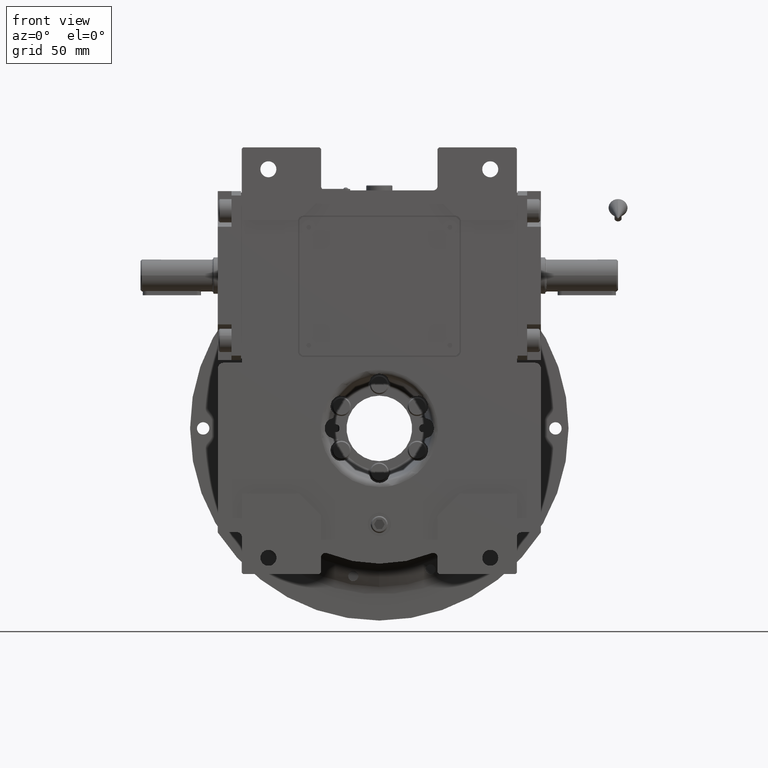
[diagram: clean part render]
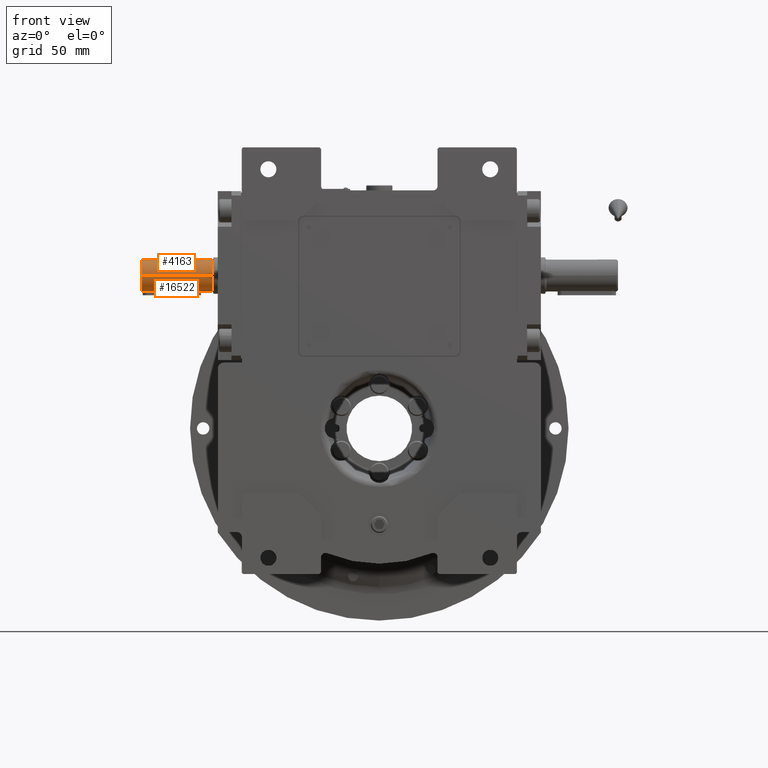
[diagram: same view with one multi-face feature highlighted, each face labeled with its STEP entity id]
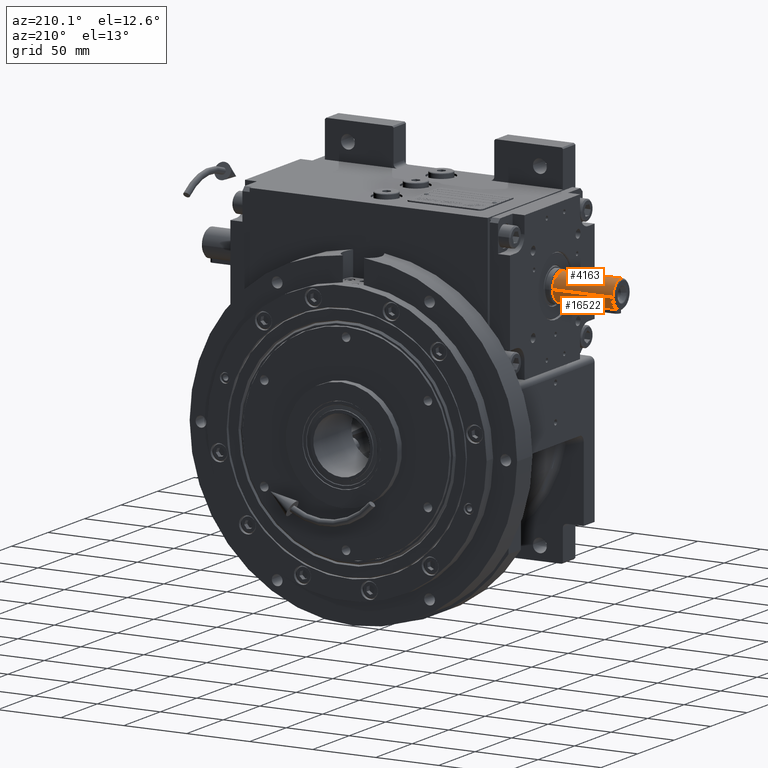
[diagram: same view with one multi-face feature highlighted, each face labeled with its STEP entity id]
A machine part, front view. The highlighted faces form ONE feature: a constant-radius fillet chain: 2 tangent blend faces with common blend radius 11 mm. The faces share edges in the B-rep.
A second angle (auxiliary view) of the same feature is appended — it is thin or edge-on in the first view.
Their STEP definitions:
[1] entity #16522 (Cylinder):
#83 = CARTESIAN_POINT ( 'NONE',  ( 0.7660300046609603841, 168.5976912605676716, 10.97354824663438499 ) ) ;
#421 = CARTESIAN_POINT ( 'NONE',  ( -2.854075951817792944, 170.5744775876573556, 10.62355100343995318 ) ) ;
#775 = CARTESIAN_POINT ( 'NONE',  ( -2.211193619821330891, 169.4722792484953686, 10.77562492455039234 ) ) ;
#1134 = CARTESIAN_POINT ( 'NONE',  ( -2.498350456136479547, 169.8363144599197767, 10.71355034653173988 ) ) ;
#1474 = CARTESIAN_POINT ( 'NONE',  ( 2.308734591574664208, 169.5660757615260366, 10.75673222596686607 ) ) ;
#1760 = CARTESIAN_POINT ( 'NONE',  ( 1.433641063859902864, 208.1365963449599974, 10.90581971387781657 ) ) ;
#2442 = CARTESIAN_POINT ( 'NONE',  ( 2.831211821317803690, 206.4941158000847850, 10.62945302409086601 ) ) ;
#2489 = CARTESIAN_POINT ( 'NONE',  ( 2.764613483579583697, 170.3351272444221536, 10.64672004548999062 ) ) ;
#2773 = CARTESIAN_POINT ( 'NONE',  ( 2.920736592802817722, 206.1920781631039858, 10.60630209123706713 ) ) ;
#2826 = CARTESIAN_POINT ( 'NONE',  ( 2.999999999999917843, 171.5000000000000284, 10.58300524425835576 ) ) ;
#2829 = DIRECTION ( 'NONE',  ( -4.683861624749757595E-31, 1.000000000000000000, 9.367723249499515189E-31 ) ) ;
#3018 = EDGE_LOOP ( 'NONE', ( #28774, #45633, #31394, #68014 ) ) ;
#3121 = CARTESIAN_POINT ( 'NONE',  ( 2.979326682313685470, 205.9028774423900074, 10.59077584461320853 ) ) ;
#4712 = CARTESIAN_POINT ( 'NONE',  ( -2.601559668085969612, 206.9971612710415911, 10.68881831214253531 ) ) ;
#4931 = CARTESIAN_POINT ( 'NONE',  ( 1.429970974490036628, 168.8554804092703137, 10.90719154593365481 ) ) ;
#5047 = CARTESIAN_POINT ( 'NONE',  ( -1.678559104051027928, 207.9883758854033715, 10.87070390130170416 ) ) ;
#5272 = CARTESIAN_POINT ( 'NONE',  ( -1.512920505492298950, 168.9075789781374795, 10.89501527342688192 ) ) ;
#5393 = CARTESIAN_POINT ( 'NONE',  ( -3.000000000000090150, 205.9062042931898588, 10.58646656928889485 ) ) ;
#5946 = CARTESIAN_POINT ( 'NONE',  ( -2.293773039446053374, 169.5654594730334281, 10.75861599459855533 ) ) ;
#6301 = CARTESIAN_POINT ( 'NONE',  ( -2.772312094891833389, 170.3535701749892723, 10.64471543622043725 ) ) ;
#6661 = CARTESIAN_POINT ( 'NONE',  ( 2.748365590168961425, 170.2970937011939156, 10.65097208548513485 ) ) ;
#6946 = CARTESIAN_POINT ( 'NONE',  ( -0.1869660823867076438, 208.5000000071818533, 11.00000260151293929 ) ) ;
#7283 = CARTESIAN_POINT ( 'NONE',  ( 1.942138565853932075, 207.8004848156913908, 10.82877006207169579 ) ) ;
#7639 = CARTESIAN_POINT ( 'NONE',  ( 1.234039166872511695, 208.2345037874122511, 10.93043900165573312 ) ) ;
#7649 = CARTESIAN_POINT ( 'NONE',  ( -2.879180034990585835, 208.9998216057742013, 10.71352568579750120 ) ) ;
#7674 = LINE ( 'NONE', #34216, #43551 ) ;
#7696 = CARTESIAN_POINT ( 'NONE',  ( 2.601559605864334213, 170.0028386211674274, 10.68881833244917523 ) ) ;
#7698 = EDGE_CURVE ( 'NONE', #50924, #21062, #38910, .T. ) ;
#7974 = CARTESIAN_POINT ( 'NONE',  ( 1.761503382575561272, 207.9362690075281250, 10.85852761685147527 ) ) ;
#8172 = CARTESIAN_POINT ( 'NONE',  ( -3.000000000000082601, 205.5000000000000284, 10.58300524425835576 ) ) ;
#8313 = CARTESIAN_POINT ( 'NONE',  ( 2.498350418695169939, 207.1636855961122023, 10.71355035712630865 ) ) ;
#8322 = CARTESIAN_POINT ( 'NONE',  ( -10.99982159998399744, 208.9998216057712455, 1.439873280091993557 ) ) ;
#8364 = LINE ( 'NONE', #56245, #32579 ) ;
#8651 = CARTESIAN_POINT ( 'NONE',  ( -2.698907439505223937, 206.8105446094843103, 10.66393854603710878 ) ) ;
#8993 = CARTESIAN_POINT ( 'NONE',  ( -1.942007582189047898, 207.7873945690253947, 10.82708017654643307 ) ) ;
#10103 = CARTESIAN_POINT ( 'NONE',  ( -3.000000000000089706, 171.2969416959749651, 10.58473538646198620 ) ) ;
#10175 = CARTESIAN_POINT ( 'NONE',  ( 2.999999999999917843, 171.5000000000000284, 10.58300524425835576 ) ) ;
#10442 = CARTESIAN_POINT ( 'NONE',  ( -0.3739326876442026770, 168.5000000170198859, 10.99999480633905691 ) ) ;
#10556 = CARTESIAN_POINT ( 'NONE',  ( -0.6690471670458882913, 208.4261023684203735, 10.97984746646839049 ) ) ;
#10785 = CARTESIAN_POINT ( 'NONE',  ( 1.067681326174926504, 168.6962141872421057, 10.94807461813118188 ) ) ;
#10906 = CARTESIAN_POINT ( 'NONE',  ( -0.9835473798974690984, 208.3349984927263847, 10.95606726062417735 ) ) ;
#11122 = CARTESIAN_POINT ( 'NONE',  ( -2.232376894938095102, 169.4956412869229041, 10.77130172608876180 ) ) ;
#11468 = CARTESIAN_POINT ( 'NONE',  ( -1.761503377498407241, 169.0637309891567384, 10.85852761823462664 ) ) ;
#12172 = CARTESIAN_POINT ( 'NONE',  ( 1.942007626740597903, 169.2126054684655969, 10.82708016768247639 ) ) ;
#12470 = CARTESIAN_POINT ( 'NONE',  ( 1.439873276542142477, 208.9998216057751108, 10.99982160044466362 ) ) ;
#12510 = CARTESIAN_POINT ( 'NONE',  ( 2.715325017861212498, 170.2239481373033811, 10.65964339383735293 ) ) ;
#12789 = CARTESIAN_POINT ( 'NONE',  ( 1.286031883976452184, 208.2106413463211538, 10.92437284050215673 ) ) ;
#12838 = CARTESIAN_POINT ( 'NONE',  ( 2.076400037127472231, 169.3344725131065900, 10.80229493266225838 ) ) ;
#13126 = CARTESIAN_POINT ( 'NONE',  ( 2.211193640733463806, 207.5277207285452334, 10.77562492030889274 ) ) ;
#13177 = CARTESIAN_POINT ( 'NONE',  ( 2.031554838444880939, 169.2923470949750708, 10.81075490227139113 ) ) ;
#14151 = CARTESIAN_POINT ( 'NONE',  ( -1.147497220845989041, 208.2718709842086753, 10.93995103843515970 ) ) ;
#14217 = EDGE_CURVE ( 'NONE', #68090, #33563, #35811, .T. ) ;
#14824 = DIRECTION ( 'NONE',  ( -1.000000000000000000, 0.000000000000000000, 8.599181972551215489E-15 ) ) ;
#15406 = CARTESIAN_POINT ( 'NONE',  ( -2.076399965673095593, 207.6655275553029867, 10.80229494691891112 ) ) ;
#15732 = CARTESIAN_POINT ( 'NONE',  ( -1.139533900953844991, 208.2751584090861741, 10.94078571015552903 ) ) ;
#15953 = CARTESIAN_POINT ( 'NONE',  ( -1.942138540634611443, 169.1995151677060107, 10.82877006683077248 ) ) ;
#16070 = CARTESIAN_POINT ( 'NONE',  ( -0.7660298785186925308, 208.4023087729604526, 10.97354825509163945 ) ) ;
#16307 = CARTESIAN_POINT ( 'NONE',  ( 1.279005678273035906, 168.7827925354089871, 10.92607962578970771 ) ) ;
#16522 = ADVANCED_FACE ( 'NONE', ( #23869, #33881 ), #44901, .T. ) ;
#16654 = CARTESIAN_POINT ( 'NONE',  ( 0.9835474860896697979, 168.6650015443500763, 10.95606725368451961 ) ) ;
#17674 = CARTESIAN_POINT ( 'NONE',  ( 6.759904280527821996, 208.9998216057764751, 8.796192608861034046 ) ) ;
#17715 = CARTESIAN_POINT ( 'NONE',  ( 2.767734022707133423, 170.3425611766374459, 10.64590627712765070 ) ) ;
#17998 = CARTESIAN_POINT ( 'NONE',  ( 2.779840276394444754, 206.6280618357305912, 10.64275983503434375 ) ) ;
#18682 = CARTESIAN_POINT ( 'NONE',  ( 2.331831469196709250, 207.3883554059316054, 10.75053732846293997 ) ) ;
#18693 = CARTESIAN_POINT ( 'NONE',  ( -10.71352568672911332, 208.9998216057715865, 2.879180031534197770 ) ) ;
#18713 = DIRECTION ( 'NONE',  ( -4.683861624749757595E-31, 1.000000000000000000, 9.367723249499515189E-31 ) ) ;
#18730 = CARTESIAN_POINT ( 'NONE',  ( 2.097778072076519340, 169.3551396584123268, 10.79818608746044895 ) ) ;
#19011 = CARTESIAN_POINT ( 'NONE',  ( 1.157452513228695246, 208.2677329124778680, 10.93890087851657533 ) ) ;
#20586 = CARTESIAN_POINT ( 'NONE',  ( -2.737723622719329786, 206.7268634571211123, 10.65376796009249105 ) ) ;
#21062 = VERTEX_POINT ( 'NONE', #58630 ) ;
#21135 = CARTESIAN_POINT ( 'NONE',  ( -2.331831480777071697, 169.6116446080049514, 10.75053732546468765 ) ) ;
#21191 = EDGE_CURVE ( 'NONE', #34126, #44311, #65244, .T. ) ;
#21470 = CARTESIAN_POINT ( 'NONE',  ( 0.6690472934797331295, 168.5738976602024479, 10.97984745790708772 ) ) ;
#21596 = CARTESIAN_POINT ( 'NONE',  ( -1.897425668484660877, 207.8244195157290051, 10.83486051743896006 ) ) ;
#22188 = CARTESIAN_POINT ( 'NONE',  ( -2.831211770130459104, 170.5058840566491938, 10.62945303912002615 ) ) ;
#22546 = EDGE_CURVE ( 'NONE', #24035, #57239, #23123, .T. ) ;
#23123 = CIRCLE ( 'NONE', #60542, 11.00000000000000000 ) ;
#23165 = CARTESIAN_POINT ( 'NONE',  ( 2.653232687552493640, 206.9137802569442215, 10.67643290049545612 ) ) ;
#23492 = CARTESIAN_POINT ( 'NONE',  ( 2.772312108320795332, 206.6464297925444100, 10.64471543524964936 ) ) ;
#23818 = CARTESIAN_POINT ( 'NONE',  ( 2.896620549922605647, 206.2867366109770160, 10.61255509526254670 ) ) ;
#23828 = CARTESIAN_POINT ( 'NONE',  ( -6.759904286206507074, 208.9998216057731213, 8.796192604501108292 ) ) ;
#23869 = FACE_OUTER_BOUND ( 'NONE', #3018, .T. ) ;
#24035 = VERTEX_POINT ( 'NONE', #50689 ) ;
#24163 = CARTESIAN_POINT ( 'NONE',  ( 2.775339633358483660, 206.6390897185939366, 10.64392871889903347 ) ) ;
#24499 = CARTESIAN_POINT ( 'NONE',  ( -2.446669781241373354, 207.2470619033199739, 10.72593578221498944 ) ) ;
#26080 = CARTESIAN_POINT ( 'NONE',  ( -2.748365588727732067, 206.7029063017605495, 10.65097208023377107 ) ) ;
#26300 = CARTESIAN_POINT ( 'NONE',  ( -1.322026423828889019, 168.8066771672218351, 10.91998920481140267 ) ) ;
#26433 = CARTESIAN_POINT ( 'NONE',  ( -1.127575243858448317, 208.2800388084309873, 10.94202596088717705 ) ) ;
#26644 = CARTESIAN_POINT ( 'NONE',  ( -2.167336588683653087, 169.4254685392180875, 10.78446056407013032 ) ) ;
#26833 = CARTESIAN_POINT ( 'NONE',  ( 11.00000000000000000, 161.0000000000000284, 0.000000000000000000 ) ) ;
#26989 = CARTESIAN_POINT ( 'NONE',  ( -2.775339617218300248, 170.3609102421057457, 10.64392872073288210 ) ) ;
#27977 = CARTESIAN_POINT ( 'NONE',  ( -0.3790211413637508686, 208.4824720792036601, 10.99496479331891408 ) ) ;
#28128 = EDGE_LOOP ( 'NONE', ( #51631, #44340, #49103, #40830 ) ) ;
#28317 = CARTESIAN_POINT ( 'NONE',  ( 2.232376909501748052, 207.5043586967248928, 10.77130172318535095 ) ) ;
#28528 = EDGE_CURVE ( 'NONE', #57239, #33563, #36829, .T. ) ;
#28774 = ORIENTED_EDGE ( 'NONE', *, *, #22546, .T. ) ;
#29056 = CARTESIAN_POINT ( 'NONE',  ( 2.446669717013508993, 169.7529380078595693, 10.72593579875624847 ) ) ;
#29347 = CARTESIAN_POINT ( 'NONE',  ( 2.293773036830384360, 207.4345405295221667, 10.75861599544649572 ) ) ;
#30021 = CARTESIAN_POINT ( 'NONE',  ( -2.009136411221251972, 207.7280625489486283, 10.81489994510766373 ) ) ;
#31155 = CARTESIAN_POINT ( 'NONE',  ( -2.722192573628714474, 170.2328222567296905, 10.65774367792662503 ) ) ;
#31229 = DIRECTION ( 'NONE',  ( -4.683861624749757595E-31, 1.000000000000000000, 9.367723249499515189E-31 ) ) ;
#31272 = CARTESIAN_POINT ( 'NONE',  ( -2.031554776398942774, 207.7076529620196652, 10.81075491461141169 ) ) ;
#31394 = ORIENTED_EDGE ( 'NONE', *, *, #14217, .F. ) ;
#31492 = CARTESIAN_POINT ( 'NONE',  ( 0.3790212450437195901, 168.5175279328497879, 10.99496478591228232 ) ) ;
#31611 = CARTESIAN_POINT ( 'NONE',  ( -1.067681234393999423, 208.3037858477822510, 10.94807462401718468 ) ) ;
#32176 = CARTESIAN_POINT ( 'NONE',  ( -1.159479155630800173, 168.7331195871554996, 10.93868412015507374 ) ) ;
#32514 = CARTESIAN_POINT ( 'NONE',  ( -1.433641062218319329, 168.8634036539154408, 10.90581971317204513 ) ) ;
#32579 = VECTOR ( 'NONE', #2829, 1000.000000000000000 ) ;
#33164 = CARTESIAN_POINT ( 'NONE',  ( 0.3739325104841381697, 208.4999999856364070, 10.99999479697607896 ) ) ;
#33547 = CARTESIAN_POINT ( 'NONE',  ( 2.759870980702111343, 170.3238923559703153, 10.64795842688996252 ) ) ;
#33563 = VERTEX_POINT ( 'NONE', #34796 ) ;
#33842 = CARTESIAN_POINT ( 'NONE',  ( 2.143602779759595567, 207.5990400649873777, 10.78918130667784858 ) ) ;
#33881 = FACE_BOUND ( 'NONE', #28128, .T. ) ;
#34126 = VERTEX_POINT ( 'NONE', #42481 ) ;
#34216 = CARTESIAN_POINT ( 'NONE',  ( -3.000000000000082601, 171.5000000000000284, 10.58300524425888334 ) ) ;
#34451 = EDGE_CURVE ( 'NONE', #50924, #44311, #7674, .T. ) ;
#34529 = CARTESIAN_POINT ( 'NONE',  ( 10.71352568486465451, 208.9998216057781804, 2.879180038446532919 ) ) ;
#34796 = CARTESIAN_POINT ( 'NONE',  ( 11.00000000000000000, 208.9999777057610117, 0.000000000000000000 ) ) ;
#34862 = CARTESIAN_POINT ( 'NONE',  ( -2.644564917222766987, 206.9187285013183271, 10.67795868685712257 ) ) ;
#35213 = CARTESIAN_POINT ( 'NONE',  ( -1.429970973129999878, 208.1445195910417851, 10.90719154465723761 ) ) ;
#35811 = B_SPLINE_CURVE_WITH_KNOTS ( 'NONE', 3,
 ( #65208, #8322, #18693, #39359, #65541, #23828, #39022, #7649, #54175, #12470, #60710, #60011, #17674, #38697, #44862, #34529, #55185, #65889 ),
 .UNSPECIFIED., .F., .F.,
 ( 4, 2, 2, 2, 2, 2, 2, 2, 4 ),
 ( 0.000000000000000000, 0.1250000000000000278, 0.2500000000000000555, 0.3750000000000000000, 0.5000000000000000000, 0.6250000000000000000, 0.7500000000000000000, 0.8750000000000001110, 1.000000000000000000 ),
 .UNSPECIFIED. ) ;
#36648 = CARTESIAN_POINT ( 'NONE',  ( -2.920736532385526996, 170.8079215815316445, 10.60630211995176708 ) ) ;
#36684 = AXIS2_PLACEMENT_3D ( 'NONE', #51053, #67582, #55900 ) ;
#36774 = CARTESIAN_POINT ( 'NONE',  ( -2.308734620827896933, 207.4339242235999734, 10.75673222121823258 ) ) ;
#36829 = LINE ( 'NONE', #26833, #58205 ) ;
#36993 = CARTESIAN_POINT ( 'NONE',  ( 0.1869661390004578594, 168.4999999914900854, 11.00000259683188197 ) ) ;
#37117 = CARTESIAN_POINT ( 'NONE',  ( -2.759870969661196494, 206.6761076698489319, 10.64795842476979892 ) ) ;
#37121 = CARTESIAN_POINT ( 'NONE',  ( 11.00000000000000000, 161.0000000000000284, 4.629005512235551123E-09 ) ) ;
#37352 = CARTESIAN_POINT ( 'NONE',  ( -2.979326648543525025, 171.0971223052072503, 10.59077587316058278 ) ) ;
#37686 = CARTESIAN_POINT ( 'NONE',  ( -1.234039142372927111, 168.7654962015103877, 10.93043900252528289 ) ) ;
#38697 = CARTESIAN_POINT ( 'NONE',  ( 8.796192602316750708, 208.9998216057772140, 6.759904289042387049 ) ) ;
#38732 = CARTESIAN_POINT ( 'NONE',  ( 2.768513025352917545, 170.3444174603243937, 10.64570308239758489 ) ) ;
#38910 = B_SPLINE_CURVE_WITH_KNOTS ( 'NONE', 3,
 ( #57646, #10103, #37352, #36648, #52845, #421, #22188, #53518, #58340, #46980, #26989, #6301, #31155, #57990, #1134, #48354, #21135, #5946, #11122, #775, #26644, #53176, #15953, #11468, #5272, #32514, #26300, #42160, #37686, #63187, #43203, #47998, #32176, #42866, #63884, #10442, #36993, #31492, #21470, #83, #52154, #16654, #10785, #64223, #47657, #42501, #63531, #16307, #4931, #68009, #58681, #41825, #12172, #49366, #13177, #12838, #18730, #1474, #29056, #7696, #49709, #55222, #12510, #44908, #6661, #33547, #2489, #17715, #38732, #60396, #44559, #2826 ),
 .UNSPECIFIED., .F., .F.,
 ( 4, 2, 2, 1, 1, 1, 2, 2, 2, 2, 2, 2, 2, 2, 2, 2, 1, 1, 2, 2, 2, 2, 2, 1, 1, 1, 2, 2, 2, 2, 2, 2, 2, 2, 2, 2, 1, 1, 2, 2, 4 ),
 ( 0.000000000000000000, 0.06249999999987768118, 0.09374999999981652177, 0.1093749999997901956, 0.1171874999997770395, 0.1210937499997704614, 0.1230468749997672140, 0.1249999999997639943, 0.1874999999998474276, 0.2187499999998890887, 0.2343749999999070743, 0.2421874999999134581, 0.2499999999999198419, 0.3124999999999855671, 0.3437500000000184852, 0.3593750000000326406, 0.3671875000000373590, 0.3710937500000397460, 0.3730468750000432432, 0.3750000000000467404, 0.5000000000001896261, 0.5625000000002611245, 0.5937500000002968736, 0.6093750000003147482, 0.6171875000003236300, 0.6210937500003280709, 0.6230468750003287370, 0.6250000000003292921, 0.6875000000003406164, 0.7187500000003484990, 0.7343750000003547163, 0.7421875000003602674, 0.7500000000003657075, 0.8125000000004189982, 0.8437500000004419798, 0.8593750000004488632, 0.8671875000004576339, 0.8710937500004620748, 0.8730468750004581890, 0.8750000000004541922, 1.000000000000000000 ),
 .UNSPECIFIED. ) ;
#39011 = CARTESIAN_POINT ( 'NONE',  ( 2.167336623629454007, 207.5745314241212611, 10.78446055697714812 ) ) ;
#39022 = CARTESIAN_POINT ( 'NONE',  ( -5.539718940497374788, 208.9998216057735192, 9.611494387161664932 ) ) ;
#39347 = CARTESIAN_POINT ( 'NONE',  ( 2.801868858470860868, 206.5726274570405963, 10.63704590494139879 ) ) ;
#39359 = CARTESIAN_POINT ( 'NONE',  ( -9.611494388950395873, 208.9998216057721834, 5.539718937396577836 ) ) ;
#39686 = CARTESIAN_POINT ( 'NONE',  ( 1.179703648391459136, 208.2583393865936046, 10.93651199430383159 ) ) ;
#40023 = CARTESIAN_POINT ( 'NONE',  ( 2.999999999999911626, 205.7030581364574573, 10.58473536746739363 ) ) ;
#40381 = CARTESIAN_POINT ( 'NONE',  ( -8.881784197022640315E-16, 161.0000000000000284, 5.134781488891348999E-13 ) ) ;
#40830 = ORIENTED_EDGE ( 'NONE', *, *, #7698, .F. ) ;
#41825 = CARTESIAN_POINT ( 'NONE',  ( 1.897425705253059425, 169.1755805140680309, 10.83486051008340390 ) ) ;
#41942 = CARTESIAN_POINT ( 'NONE',  ( -1.109627185540415839, 208.2872959487408764, 10.94387157015932921 ) ) ;
#42160 = CARTESIAN_POINT ( 'NONE',  ( -1.286031867911205495, 168.7893586459718449, 10.92437284069479553 ) ) ;
#42401 = CARTESIAN_POINT ( 'NONE',  ( -10.99995538991750088, 208.9999554115215119, -1.645557995422208819E-07 ) ) ;
#42481 = CARTESIAN_POINT ( 'NONE',  ( 2.999999999999917843, 205.5000000000000284, 10.58300524425835576 ) ) ;
#42501 = CARTESIAN_POINT ( 'NONE',  ( 1.139533978096343825, 168.7248416225932601, 10.94078570534264472 ) ) ;
#42628 = CARTESIAN_POINT ( 'NONE',  ( -2.767734004599112563, 206.6574388666506934, 10.64590627739815609 ) ) ;
#42866 = CARTESIAN_POINT ( 'NONE',  ( -1.157452472523905485, 168.7322670704961922, 10.93890088078130063 ) ) ;
#43203 = CARTESIAN_POINT ( 'NONE',  ( -1.179703613028082243, 168.7416605982708973, 10.93651199609693592 ) ) ;
#43551 = VECTOR ( 'NONE', #18713, 1000.000000000000000 ) ;
#44311 = VERTEX_POINT ( 'NONE', #8172 ) ;
#44340 = ORIENTED_EDGE ( 'NONE', *, *, #21191, .F. ) ;
#44559 = CARTESIAN_POINT ( 'NONE',  ( 2.999999999999909406, 171.0937962497110050, 10.58646650751575891 ) ) ;
#44850 = CARTESIAN_POINT ( 'NONE',  ( 1.322026435441510106, 208.1933228270213760, 10.91998920494051539 ) ) ;
#44862 = CARTESIAN_POINT ( 'NONE',  ( 9.611494385370720650, 208.9998216057774130, 5.539718943596772860 ) ) ;
#44901 = CYLINDRICAL_SURFACE ( 'NONE', #36684, 11.00000000000000000 ) ;
#44908 = CARTESIAN_POINT ( 'NONE',  ( 2.737723616411809946, 170.2731365286352627, 10.65376796770141254 ) ) ;
#45192 = CARTESIAN_POINT ( 'NONE',  ( 1.512920505027642415, 208.0924210222171951, 10.89501527399899494 ) ) ;
#45524 = CARTESIAN_POINT ( 'NONE',  ( -2.768513007301319107, 206.6555825828828858, 10.64570308271039778 ) ) ;
#45633 = ORIENTED_EDGE ( 'NONE', *, *, #28528, .T. ) ;
#46541 = EDGE_CURVE ( 'NONE', #24035, #68090, #8364, .T. ) ;
#46756 = CARTESIAN_POINT ( 'NONE',  ( -1.279005655815804054, 208.2172074779478521, 10.92607962582780523 ) ) ;
#46980 = CARTESIAN_POINT ( 'NONE',  ( -2.779840256848185032, 170.3719381161269553, 10.64275983800449765 ) ) ;
#47449 = CARTESIAN_POINT ( 'NONE',  ( -3.000000000000082601, 205.5000000000000284, 10.58300524425835576 ) ) ;
#47657 = CARTESIAN_POINT ( 'NONE',  ( 1.127575323570559673, 168.7199612239032547, 10.94202595588556726 ) ) ;
#47998 = CARTESIAN_POINT ( 'NONE',  ( -1.167542316113192591, 168.7365123355785386, 10.93782163668175222 ) ) ;
#48354 = CARTESIAN_POINT ( 'NONE',  ( -2.438082279217019810, 169.7481291815186353, 10.72743677364188386 ) ) ;
#49103 = ORIENTED_EDGE ( 'NONE', *, *, #60796, .F. ) ;
#49319 = CARTESIAN_POINT ( 'NONE',  ( 2.722192558527213979, 206.7671777832651969, 10.65774368688581575 ) ) ;
#49366 = CARTESIAN_POINT ( 'NONE',  ( 2.009136468733570435, 169.2719375028273134, 10.81489993367493341 ) ) ;
#49665 = CARTESIAN_POINT ( 'NONE',  ( 2.999999999999917843, 205.5000000000000284, 10.58300524425835576 ) ) ;
#49709 = CARTESIAN_POINT ( 'NONE',  ( 2.644564864764731738, 170.0812713992473277, 10.67795870609829478 ) ) ;
#50689 = CARTESIAN_POINT ( 'NONE',  ( -11.00000000000000000, 161.0000000000000284, -4.628492034086661988E-09 ) ) ;
#50924 = VERTEX_POINT ( 'NONE', #51611 ) ;
#51053 = CARTESIAN_POINT ( 'NONE',  ( -2.253530627927504672E-27, 160.0000000000000284, 5.273559366969493567E-13 ) ) ;
#51611 = CARTESIAN_POINT ( 'NONE',  ( -3.000000000000082601, 171.5000000000000284, 10.58300524425888334 ) ) ;
#51631 = ORIENTED_EDGE ( 'NONE', *, *, #34451, .T. ) ;
#51657 = DIRECTION ( 'NONE',  ( -4.683861624749757595E-31, 1.000000000000000000, 9.367723249499515189E-31 ) ) ;
#51938 = CARTESIAN_POINT ( 'NONE',  ( -2.097777976926303634, 207.6448604349319567, 10.79818610642119481 ) ) ;
#52154 = CARTESIAN_POINT ( 'NONE',  ( 0.9111085654770301190, 168.6412536526178485, 10.96220927681888035 ) ) ;
#52267 = CARTESIAN_POINT ( 'NONE',  ( -0.9111084508035326435, 208.3587463839891711, 10.96220928438663655 ) ) ;
#52624 = CARTESIAN_POINT ( 'NONE',  ( -2.764613468312786093, 206.6648727917981319, 10.64672004479335143 ) ) ;
#52845 = CARTESIAN_POINT ( 'NONE',  ( -2.896620484574018661, 170.7132631530699598, 10.61255512167270965 ) ) ;
#52966 = CARTESIAN_POINT ( 'NONE',  ( -2.916726216699202290, 206.2985075118487828, 10.60716823416496801 ) ) ;
#53176 = CARTESIAN_POINT ( 'NONE',  ( -2.143602725503926276, 169.4009598796852458, 10.78918131756628718 ) ) ;
#53518 = CARTESIAN_POINT ( 'NONE',  ( -2.801868823610917492, 170.4273724525709781, 10.63704591330724369 ) ) ;
#54175 = CARTESIAN_POINT ( 'NONE',  ( -1.439873283641022184, 208.9998216057745140, 10.99982159951607663 ) ) ;
#55185 = CARTESIAN_POINT ( 'NONE',  ( 10.99982159904755363, 208.9998216057784930, 1.439873287189862072 ) ) ;
#55222 = CARTESIAN_POINT ( 'NONE',  ( 2.698907409592844253, 170.1894553284684264, 10.66393856019919006 ) ) ;
#55511 = CARTESIAN_POINT ( 'NONE',  ( 2.854076010124382723, 206.4255222335273743, 10.62355098402704101 ) ) ;
#55900 = DIRECTION ( 'NONE',  ( -1.000000000000000000, 0.000000000000000000, 8.437694987151192863E-15 ) ) ;
#56188 = CARTESIAN_POINT ( 'NONE',  ( -1.765016607846097152, 207.9284392897766622, 10.85718209991657268 ) ) ;
#56245 = CARTESIAN_POINT ( 'NONE',  ( -11.00000000000000000, 161.0000000000000284, 5.273559366969493567E-13 ) ) ;
#57239 = VERTEX_POINT ( 'NONE', #37121 ) ;
#57377 = LINE ( 'NONE', #10175, #58690 ) ;
#57646 = CARTESIAN_POINT ( 'NONE',  ( -3.000000000000082601, 171.5000000000000284, 10.58300524425888334 ) ) ;
#57761 = CARTESIAN_POINT ( 'NONE',  ( -2.715325038922851597, 206.7760518172297566, 10.65964338194845418 ) ) ;
#57990 = CARTESIAN_POINT ( 'NONE',  ( -2.653232724297391876, 170.0862198111043142, 10.67643288751651731 ) ) ;
#58205 = VECTOR ( 'NONE', #51657, 1000.000000000000000 ) ;
#58340 = CARTESIAN_POINT ( 'NONE',  ( -2.786545469109226403, 170.3885086293563518, 10.64101914187430076 ) ) ;
#58630 = CARTESIAN_POINT ( 'NONE',  ( 2.999999999999917843, 171.5000000000000284, 10.58300524425835576 ) ) ;
#58681 = CARTESIAN_POINT ( 'NONE',  ( 1.765016624717439031, 169.0715607216540377, 10.85718209647388832 ) ) ;
#58690 = VECTOR ( 'NONE', #31229, 1000.000000000000000 ) ;
#59668 = CARTESIAN_POINT ( 'NONE',  ( 2.786545493596075840, 206.6114913094266967, 10.64101913722736015 ) ) ;
#60001 = CARTESIAN_POINT ( 'NONE',  ( 1.159479195744513413, 208.2668803960328887, 10.93868411794432838 ) ) ;
#60011 = CARTESIAN_POINT ( 'NONE',  ( 5.539718934293233588, 208.9998216057761340, 9.611494390734479865 ) ) ;
#60396 = CARTESIAN_POINT ( 'NONE',  ( 2.916726425407015100, 170.7014930090882672, 10.60716817197006634 ) ) ;
#60542 = AXIS2_PLACEMENT_3D ( 'NONE', #40381, #62744, #14824 ) ;
#60710 = CARTESIAN_POINT ( 'NONE',  ( 2.879180028076210540, 208.9998216057754519, 10.71352568765430924 ) ) ;
#60796 = EDGE_CURVE ( 'NONE', #21062, #34126, #57377, .T. ) ;
#61033 = CARTESIAN_POINT ( 'NONE',  ( 0.7694195325722867906, 208.4290248706461171, 10.97983835631161575 ) ) ;
#62744 = DIRECTION ( 'NONE',  ( -4.683861624749757595E-31, 1.000000000000000000, 9.367723249499515189E-31 ) ) ;
#63187 = CARTESIAN_POINT ( 'NONE',  ( -1.208542002004611593, 168.7540940151674818, 10.93334476044187298 ) ) ;
#63531 = CARTESIAN_POINT ( 'NONE',  ( 1.147497296970652281, 168.7281290473081583, 10.93995103367359079 ) ) ;
#63884 = CARTESIAN_POINT ( 'NONE',  ( -0.7694194016925743895, 168.5709750817599399, 10.97983836647873801 ) ) ;
#64223 = CARTESIAN_POINT ( 'NONE',  ( 1.109627269032129382, 168.7127040845178669, 10.94387156488037505 ) ) ;
#65208 = CARTESIAN_POINT ( 'NONE',  ( -10.99995538991750088, 208.9999554115215119, -1.645557995422208819E-07 ) ) ;
#65244 = B_SPLINE_CURVE_WITH_KNOTS ( 'NONE', 3,
 ( #49665, #40023, #3121, #2773, #23818, #55511, #2442, #39347, #59668, #17998, #24163, #23492, #49319, #23165, #8313, #66214, #18682, #29347, #28317, #13126, #39011, #33842, #7283, #7974, #45192, #1760, #44850, #12789, #7639, #65875, #39686, #65531, #60001, #19011, #61033, #33164, #6946, #27977, #10556, #16070, #52267, #10906, #31611, #41942, #26433, #15732, #14151, #46756, #35213, #5047, #56188, #21596, #8993, #30021, #31272, #15406, #51938, #36774, #24499, #4712, #34862, #8651, #57761, #20586, #26080, #37117, #52624, #42628, #45524, #52966, #5393, #47449 ),
 .UNSPECIFIED., .F., .F.,
 ( 4, 2, 2, 1, 1, 1, 2, 2, 2, 2, 2, 2, 2, 2, 2, 2, 1, 1, 2, 2, 2, 2, 2, 1, 1, 1, 2, 2, 2, 2, 2, 2, 2, 2, 2, 2, 1, 1, 2, 2, 4 ),
 ( 0.000000000000000000, 0.06249999999979220788, 0.09374999999968401665, 0.1093749999996299072, 0.1171874999996071059, 0.1210937499995956429, 0.1230468749995899391, 0.1249999999995842354, 0.1874999999995243805, 0.2187499999994981237, 0.2343749999994879096, 0.2421874999994853561, 0.2499999999994828026, 0.3124999999994815258, 0.3437499999994808597, 0.3593749999994805266, 0.3671874999994826916, 0.3710937499994837463, 0.3730468749994819144, 0.3749999999994800826, 0.4999999999993992583, 0.5624999999993587352, 0.5937499999993394173, 0.6093749999993297584, 0.6171874999993263167, 0.6210937499993260946, 0.6230468749993258726, 0.6249999999993257616, 0.6874999999994300115, 0.7187499999994820810, 0.7343749999995080602, 0.7421874999995210498, 0.7499999999995340394, 0.8124999999996337374, 0.8437499999996798117, 0.8593749999997027933, 0.8671874999997142286, 0.8710937499997198907, 0.8730468749997227773, 0.8749999999997255529, 1.000000000000000000 ),
 .UNSPECIFIED. ) ;
#65531 = CARTESIAN_POINT ( 'NONE',  ( 1.167542354304421881, 208.2634876482845812, 10.93782163464049262 ) ) ;
#65541 = CARTESIAN_POINT ( 'NONE',  ( -8.796192606682938120, 208.9998216057724960, 6.759904283368517675 ) ) ;
#65875 = CARTESIAN_POINT ( 'NONE',  ( 1.208542031159786090, 208.2459059719581660, 10.93334475918529947 ) ) ;
#65889 = CARTESIAN_POINT ( 'NONE',  ( 11.00000000000000000, 208.9999777057610117, 0.000000000000000000 ) ) ;
#66214 = CARTESIAN_POINT ( 'NONE',  ( 2.438082247072530517, 207.2518708616503034, 10.72743678203931772 ) ) ;
#67582 = DIRECTION ( 'NONE',  ( 4.683861624749757595E-31, -1.000000000000000000, -9.367723249499515189E-31 ) ) ;
#68009 = CARTESIAN_POINT ( 'NONE',  ( 1.678559112312646873, 169.0116241200572347, 10.87070389965113471 ) ) ;
#68014 = ORIENTED_EDGE ( 'NONE', *, *, #46541, .F. ) ;
#68090 = VERTEX_POINT ( 'NONE', #42401 ) ;
[2] entity #4163 (Cylinder):
#577 = CARTESIAN_POINT ( 'NONE',  ( 9.325425065658253638E-14, 208.9999108029441004, -10.99991079990968501 ) ) ;
#2813 = EDGE_CURVE ( 'NONE', #57239, #24035, #25411, .T. ) ;
#2829 = DIRECTION ( 'NONE',  ( -4.683861624749757595E-31, 1.000000000000000000, 9.367723249499515189E-31 ) ) ;
#4163 = ADVANCED_FACE ( 'NONE', ( #28743 ), #30099, .T. ) ;
#5204 = B_SPLINE_CURVE_WITH_KNOTS ( 'NONE', 3,
 ( #48157, #63695, #27495, #43356, #53337, #11281, #16808, #59192, #16462, #577 ),
 .UNSPECIFIED., .F., .F.,
 ( 4, 2, 2, 2, 4 ),
 ( 0.000000000000000000, 0.1250000010347016577, 0.2500000020694033154, 0.3750000031041049731, 0.5000000041388067418 ),
 .UNSPECIFIED. ) ;
#8364 = LINE ( 'NONE', #56245, #32579 ) ;
#10164 = CARTESIAN_POINT ( 'NONE',  ( -8.796192498803419468, 208.9998216060274672, -6.759904418209425003 ) ) ;
#11281 = CARTESIAN_POINT ( 'NONE',  ( 6.759904282614707327, 208.9998216058694140, -8.796192607111565920 ) ) ;
#14585 = AXIS2_PLACEMENT_3D ( 'NONE', #45603, #49736, #40103 ) ;
#15489 = EDGE_CURVE ( 'NONE', #33563, #28383, #5204, .T. ) ;
#15669 = CARTESIAN_POINT ( 'NONE',  ( -10.99995538991750088, 208.9999554115215119, -1.645557995422208819E-07 ) ) ;
#16462 = CARTESIAN_POINT ( 'NONE',  ( 1.439873279901228154, 208.9998216059220795, -10.99982159983306218 ) ) ;
#16808 = CARTESIAN_POINT ( 'NONE',  ( 5.539718936738798227, 208.9998216058825733, -9.611494389175364361 ) ) ;
#18191 = ORIENTED_EDGE ( 'NONE', *, *, #15489, .F. ) ;
#18414 = EDGE_LOOP ( 'NONE', ( #18191, #61713, #23885, #47150, #34139 ) ) ;
#21190 = DIRECTION ( 'NONE',  ( -4.683861624749757595E-31, 1.000000000000000000, 9.367723249499515189E-31 ) ) ;
#23885 = ORIENTED_EDGE ( 'NONE', *, *, #2813, .T. ) ;
#24035 = VERTEX_POINT ( 'NONE', #50689 ) ;
#25411 = CIRCLE ( 'NONE', #40837, 11.00000000000000000 ) ;
#26833 = CARTESIAN_POINT ( 'NONE',  ( 11.00000000000000000, 161.0000000000000284, 0.000000000000000000 ) ) ;
#27495 = CARTESIAN_POINT ( 'NONE',  ( 10.71352568530425486, 208.9998216058035041, -2.879180036626189931 ) ) ;
#28383 = VERTEX_POINT ( 'NONE', #65163 ) ;
#28528 = EDGE_CURVE ( 'NONE', #57239, #33563, #36829, .T. ) ;
#28743 = FACE_OUTER_BOUND ( 'NONE', #18414, .T. ) ;
#30099 = CYLINDRICAL_SURFACE ( 'NONE', #14585, 11.00000000000000000 ) ;
#30545 = CARTESIAN_POINT ( 'NONE',  ( -9.611494287303019135, 208.9998216060407401, -5.539719106973703511 ) ) ;
#31210 = DIRECTION ( 'NONE',  ( 1.000000000000000000, 0.000000000000000000, -8.476717292636477185E-15 ) ) ;
#31216 = CARTESIAN_POINT ( 'NONE',  ( -10.71352561977209916, 208.9998216060670018, -2.879180267530163650 ) ) ;
#31900 = CARTESIAN_POINT ( 'NONE',  ( -5.539718852179358777, 208.9998216059879041, -9.611494434219167715 ) ) ;
#32579 = VECTOR ( 'NONE', #2829, 1000.000000000000000 ) ;
#33563 = VERTEX_POINT ( 'NONE', #34796 ) ;
#34139 = ORIENTED_EDGE ( 'NONE', *, *, #42338, .F. ) ;
#34796 = CARTESIAN_POINT ( 'NONE',  ( 11.00000000000000000, 208.9999777057610117, 0.000000000000000000 ) ) ;
#36704 = CARTESIAN_POINT ( 'NONE',  ( -8.881784197023788107E-16, 161.0000000000000284, 5.273559366969493567E-13 ) ) ;
#36829 = LINE ( 'NONE', #26833, #58205 ) ;
#37121 = CARTESIAN_POINT ( 'NONE',  ( 11.00000000000000000, 161.0000000000000284, 4.629005512235551123E-09 ) ) ;
#40103 = DIRECTION ( 'NONE',  ( -1.000000000000000000, 0.000000000000000000, 8.437694987151192863E-15 ) ) ;
#40837 = AXIS2_PLACEMENT_3D ( 'NONE', #36704, #21190, #31210 ) ;
#41884 = CARTESIAN_POINT ( 'NONE',  ( -6.759904185019615319, 208.9998216060011487, -8.796192678043546209 ) ) ;
#42338 = EDGE_CURVE ( 'NONE', #28383, #68090, #51889, .T. ) ;
#42401 = CARTESIAN_POINT ( 'NONE',  ( -10.99995538991750088, 208.9999554115215119, -1.645557995422208819E-07 ) ) ;
#43356 = CARTESIAN_POINT ( 'NONE',  ( 9.611494386408649504, 208.9998216058298510, -5.539718941646420092 ) ) ;
#45603 = CARTESIAN_POINT ( 'NONE',  ( -2.253530627927504672E-27, 160.0000000000000284, 5.273559366969493567E-13 ) ) ;
#46541 = EDGE_CURVE ( 'NONE', #24035, #68090, #8364, .T. ) ;
#47150 = ORIENTED_EDGE ( 'NONE', *, *, #46541, .T. ) ;
#48157 = CARTESIAN_POINT ( 'NONE',  ( 11.00000000000000000, 208.9999777057610117, 0.000000000000000000 ) ) ;
#49736 = DIRECTION ( 'NONE',  ( 4.683861624749757595E-31, -1.000000000000000000, -9.367723249499515189E-31 ) ) ;
#50689 = CARTESIAN_POINT ( 'NONE',  ( -11.00000000000000000, 161.0000000000000284, -4.628492034086661988E-09 ) ) ;
#51657 = DIRECTION ( 'NONE',  ( -4.683861624749757595E-31, 1.000000000000000000, 9.367723249499515189E-31 ) ) ;
#51889 = B_SPLINE_CURVE_WITH_KNOTS ( 'NONE', 3,
 ( #67728, #57367, #63245, #31900, #41884, #10164, #30545, #31216, #62922, #15669 ),
 .UNSPECIFIED., .F., .F.,
 ( 4, 2, 2, 2, 4 ),
 ( 0.5000000041388067418, 0.6250000031041049731, 0.7500000020694032044, 0.8750000010347016577, 1.000000000000000000 ),
 .UNSPECIFIED. ) ;
#53337 = CARTESIAN_POINT ( 'NONE',  ( 8.796192603699504176, 208.9998216058430671, -6.759904287097462827 ) ) ;
#56245 = CARTESIAN_POINT ( 'NONE',  ( -11.00000000000000000, 161.0000000000000284, 5.273559366969493567E-13 ) ) ;
#57239 = VERTEX_POINT ( 'NONE', #37121 ) ;
#57367 = CARTESIAN_POINT ( 'NONE',  ( -1.439873256063609386, 208.9998216059484548, -10.99982159980673480 ) ) ;
#58205 = VECTOR ( 'NONE', #51657, 1000.000000000000000 ) ;
#59192 = CARTESIAN_POINT ( 'NONE',  ( 2.879180031158233177, 208.9998216059089202, -10.71352568666412530 ) ) ;
#61713 = ORIENTED_EDGE ( 'NONE', *, *, #28528, .F. ) ;
#62922 = CARTESIAN_POINT ( 'NONE',  ( -10.99982156150041845, 208.9998216060801610, -1.439873547674909826 ) ) ;
#63245 = CARTESIAN_POINT ( 'NONE',  ( -2.879179983519342567, 208.9998216059616141, -10.71352569620752071 ) ) ;
#63695 = CARTESIAN_POINT ( 'NONE',  ( 10.99982159923406577, 208.9998216057903448, -1.439873285504397193 ) ) ;
#65163 = CARTESIAN_POINT ( 'NONE',  ( 9.325425065658253638E-14, 208.9999108029441004, -10.99991079990968501 ) ) ;
#67728 = CARTESIAN_POINT ( 'NONE',  ( 9.325425065658253638E-14, 208.9999108029441004, -10.99991079990968501 ) ) ;
#68090 = VERTEX_POINT ( 'NONE', #42401 ) ;